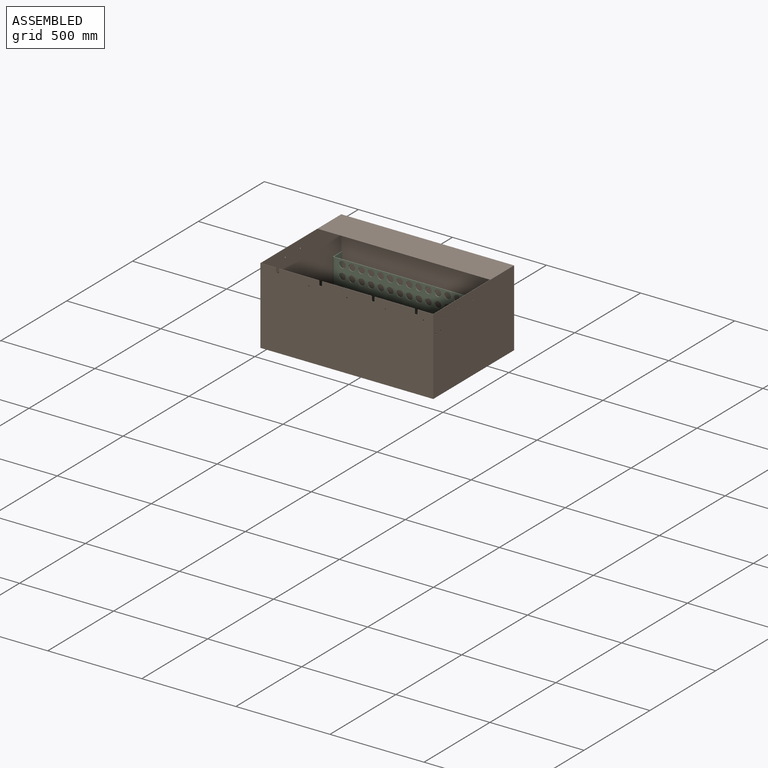
[diagram: assembled view]
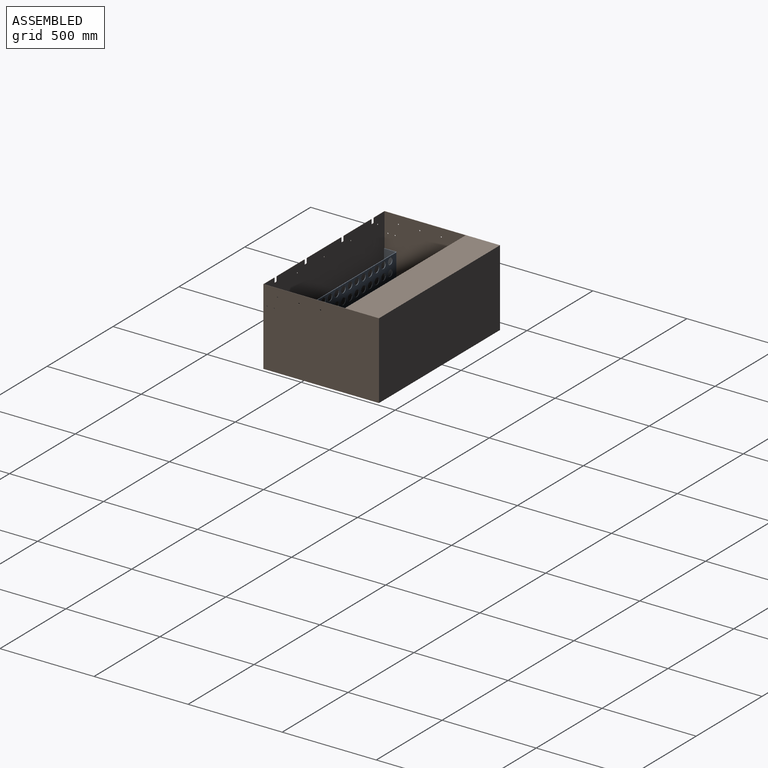
[diagram: assembled view, second angle]
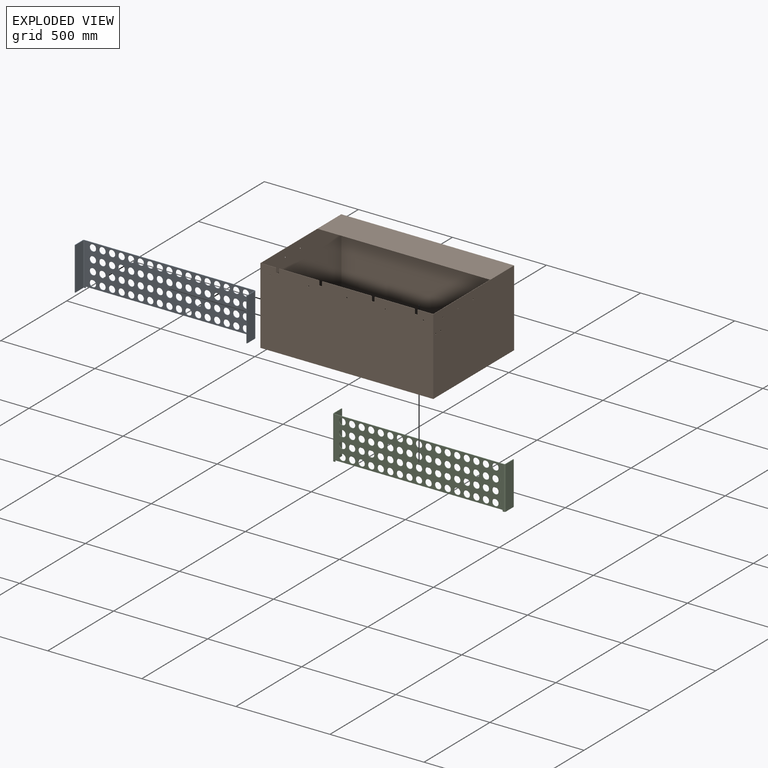
[diagram: exploded view]
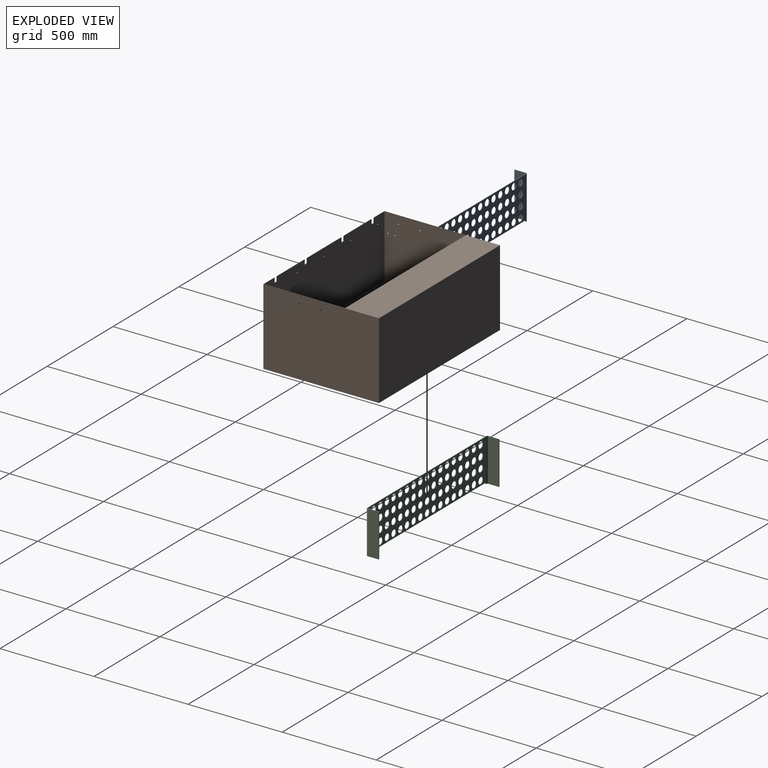
[diagram: exploded view, second angle]
ASSEMBLY  parts=3 mates=6
PART A: 94 faces, bbox 915.7x66.7x228.6 mm
  f0: plane 6.35x3.18mm, normal (0,0,-1), area 20.2mm2, adj f1,f2,f78,f91
  f1: plane 902.97x228.6mm, normal (0,1,0), area 134491.5mm2, adj f0,f3,f4,f5,f6,f7,f8,f9
  f2: plane 902.97x228.6mm, normal (0,-1,0), area 134491.5mm2, adj f0,f3,f4,f5,f6,f7,f8,f9
  f3: plane 6.35x3.18mm, normal (0,0,-1), area 20.2mm2, adj f1,f2,f87,f92
  f4: cylinder r=17.46mm len=34.93mm, axis (0,-1,0), area 348.4mm2, adj f1,f2
  f5: cylinder r=17.46mm len=34.93mm, axis (0,-1,0), area 348.4mm2, adj f1,f2
  f6: cylinder r=17.46mm len=34.93mm, axis (0,-1,0), area 348.4mm2, adj f1,f2
  f7: cylinder r=17.46mm len=34.93mm, axis (0,-1,0), area 348.4mm2, adj f1,f2
  f8: cylinder r=17.46mm len=34.93mm, axis (0,-1,0), area 348.4mm2, adj f1,f2
  f9: cylinder r=17.46mm len=34.93mm, axis (0,-1,0), area 348.4mm2, adj f1,f2
  f10: cylinder r=17.46mm len=34.93mm, axis (0,-1,0), area 348.4mm2, adj f1,f2
  f11: cylinder r=17.46mm len=34.93mm, axis (0,-1,0), area 348.4mm2, adj f1,f2
  f12: cylinder r=17.46mm len=34.93mm, axis (0,-1,0), area 348.4mm2, adj f1,f2
  f13: cylinder r=17.46mm len=34.93mm, axis (0,-1,0), area 348.4mm2, adj f1,f2
  f14: cylinder r=17.46mm len=34.93mm, axis (0,-1,0), area 348.4mm2, adj f1,f2
  f15: cylinder r=17.46mm len=34.93mm, axis (0,-1,0), area 348.4mm2, adj f1,f2
  f16: cylinder r=17.46mm len=34.93mm, axis (0,-1,0), area 348.4mm2, adj f1,f2
  f17: cylinder r=17.46mm len=34.93mm, axis (0,-1,0), area 348.4mm2, adj f1,f2
  f18: cylinder r=17.46mm len=34.93mm, axis (0,-1,0), area 348.4mm2, adj f1,f2
  f19: cylinder r=17.46mm len=34.93mm, axis (0,-1,0), area 348.4mm2, adj f1,f2
  f20: cylinder r=17.46mm len=34.93mm, axis (0,-1,0), area 348.4mm2, adj f1,f2
  f21: cylinder r=17.46mm len=34.93mm, axis (0,-1,0), area 348.4mm2, adj f1,f2
  f22: cylinder r=17.46mm len=34.93mm, axis (0,-1,0), area 348.4mm2, adj f1,f2
  f23: cylinder r=17.46mm len=34.93mm, axis (0,-1,0), area 348.4mm2, adj f1,f2
  f24: cylinder r=17.46mm len=34.93mm, axis (0,-1,0), area 348.4mm2, adj f1,f2
  f25: cylinder r=17.46mm len=34.93mm, axis (0,-1,0), area 348.4mm2, adj f1,f2
  f26: cylinder r=17.46mm len=34.93mm, axis (0,-1,0), area 348.4mm2, adj f1,f2
  f27: cylinder r=17.46mm len=34.93mm, axis (0,-1,0), area 348.4mm2, adj f1,f2
  f28: cylinder r=17.46mm len=34.93mm, axis (0,-1,0), area 348.4mm2, adj f1,f2
  f29: cylinder r=17.46mm len=34.93mm, axis (0,-1,0), area 348.4mm2, adj f1,f2
  f30: cylinder r=17.46mm len=34.93mm, axis (0,-1,0), area 348.4mm2, adj f1,f2
  f31: cylinder r=17.46mm len=34.93mm, axis (0,-1,0), area 348.4mm2, adj f1,f2
  f32: cylinder r=17.46mm len=34.93mm, axis (0,-1,0), area 348.4mm2, adj f1,f2
  f33: cylinder r=17.46mm len=34.93mm, axis (0,-1,0), area 348.4mm2, adj f1,f2
  f34: cylinder r=17.46mm len=34.93mm, axis (0,-1,0), area 348.4mm2, adj f1,f2
  f35: cylinder r=17.46mm len=34.93mm, axis (0,-1,0), area 348.4mm2, adj f1,f2
  f36: cylinder r=17.46mm len=34.93mm, axis (0,-1,0), area 348.4mm2, adj f1,f2
  f37: cylinder r=17.46mm len=34.93mm, axis (0,-1,0), area 348.4mm2, adj f1,f2
  f38: cylinder r=17.46mm len=34.93mm, axis (0,-1,0), area 348.4mm2, adj f1,f2
  f39: cylinder r=17.46mm len=34.93mm, axis (0,-1,0), area 348.4mm2, adj f1,f2
  f40: cylinder r=17.46mm len=34.93mm, axis (0,-1,0), area 348.4mm2, adj f1,f2
  f41: cylinder r=17.46mm len=34.93mm, axis (0,-1,0), area 348.4mm2, adj f1,f2
  f42: cylinder r=17.46mm len=34.93mm, axis (0,-1,0), area 348.4mm2, adj f1,f2
  f43: cylinder r=17.46mm len=34.93mm, axis (0,-1,0), area 348.4mm2, adj f1,f2
  f44: cylinder r=17.46mm len=34.93mm, axis (0,-1,0), area 348.4mm2, adj f1,f2
  f45: cylinder r=17.46mm len=34.93mm, axis (0,-1,0), area 348.4mm2, adj f1,f2
  f46: cylinder r=17.46mm len=34.93mm, axis (0,-1,0), area 348.4mm2, adj f1,f2
  f47: cylinder r=17.46mm len=34.93mm, axis (0,-1,0), area 348.4mm2, adj f1,f2
  f48: cylinder r=17.46mm len=34.93mm, axis (0,-1,0), area 348.4mm2, adj f1,f2
  f49: cylinder r=17.46mm len=34.93mm, axis (0,-1,0), area 348.4mm2, adj f1,f2
  f50: cylinder r=17.46mm len=34.93mm, axis (0,-1,0), area 348.4mm2, adj f1,f2
  f51: cylinder r=17.46mm len=34.93mm, axis (0,-1,0), area 348.4mm2, adj f1,f2
  f52: cylinder r=17.46mm len=34.93mm, axis (0,-1,0), area 348.4mm2, adj f1,f2
  f53: cylinder r=17.46mm len=34.93mm, axis (0,-1,0), area 348.4mm2, adj f1,f2
  f54: cylinder r=17.46mm len=34.93mm, axis (0,-1,0), area 348.4mm2, adj f1,f2
  f55: cylinder r=17.46mm len=34.93mm, axis (0,-1,0), area 348.4mm2, adj f1,f2
  f56: cylinder r=17.46mm len=34.93mm, axis (0,-1,0), area 348.4mm2, adj f1,f2
  f57: cylinder r=17.46mm len=34.93mm, axis (0,-1,0), area 348.4mm2, adj f1,f2
  f58: cylinder r=17.46mm len=34.93mm, axis (0,-1,0), area 348.4mm2, adj f1,f2
  f59: cylinder r=17.46mm len=34.93mm, axis (0,-1,0), area 348.4mm2, adj f1,f2
  f60: cylinder r=17.46mm len=34.93mm, axis (0,-1,0), area 348.4mm2, adj f1,f2
  f61: cylinder r=17.46mm len=34.93mm, axis (0,-1,0), area 348.4mm2, adj f1,f2
  f62: cylinder r=17.46mm len=34.93mm, axis (0,-1,0), area 348.4mm2, adj f1,f2
  f63: cylinder r=17.46mm len=34.93mm, axis (0,-1,0), area 348.4mm2, adj f1,f2
  f64: cylinder r=17.46mm len=34.93mm, axis (0,-1,0), area 348.4mm2, adj f1,f2
  f65: cylinder r=17.46mm len=34.93mm, axis (0,-1,0), area 348.4mm2, adj f1,f2
  f66: cylinder r=17.46mm len=34.93mm, axis (0,-1,0), area 348.4mm2, adj f1,f2
  f67: cylinder r=17.46mm len=34.93mm, axis (0,-1,0), area 348.4mm2, adj f1,f2
  f68: cylinder r=17.46mm len=34.93mm, axis (0,-1,0), area 348.4mm2, adj f1,f2
  f69: cylinder r=17.46mm len=34.93mm, axis (0,-1,0), area 348.4mm2, adj f1,f2
  f70: cylinder r=17.46mm len=34.93mm, axis (0,-1,0), area 348.4mm2, adj f1,f2
  f71: cylinder r=17.46mm len=34.93mm, axis (0,-1,0), area 348.4mm2, adj f1,f2
  f72: plane 902.97x3.18mm, normal (0,0,1), area 2866.9mm2, adj f1,f2,f79,f88
  f73: plane 60.33x3.18mm, normal (0,0,1), area 191.5mm2, adj f75,f76,f77,f79
  f74: plane 60.33x3.18mm, normal (0,0,-1), area 191.5mm2, adj f75,f76,f77,f78
  f75: plane 228.6x3.18mm, normal (0,1,0), area 725.8mm2, adj f73,f74,f76,f77
  f76: plane 228.6x60.33mm, normal (1,0,0), area 13790.3mm2, adj f73,f74,f75,f81
  f77: plane 228.6x60.33mm, normal (-1,0,0), area 13790.3mm2, adj f73,f74,f75,f80
  f78: plane 6.35x6.35mm, normal (0,0,-1), area 23.8mm2, adj f0,f74,f80,f81
  f79: plane 6.35x6.35mm, normal (0,0,1), area 23.8mm2, adj f72,f73,f80,f81
  f80: cylinder r=6.35mm len=228.6mm, axis (0,0,-1), area 2280.2mm2, adj f2,f77,f78,f79
  f81: cylinder r=3.17mm len=228.6mm, axis (0,0,-1), area 1140.1mm2, adj f1,f76,f78,f79
  f82: plane 60.33x3.18mm, normal (0,0,-1), area 191.5mm2, adj f84,f85,f86,f87
  f83: plane 60.33x3.18mm, normal (0,0,1), area 191.5mm2, adj f84,f85,f86,f88
  f84: plane 228.6x3.18mm, normal (0,1,0), area 725.8mm2, adj f82,f83,f85,f86
  f85: plane 228.6x60.33mm, normal (-1,0,0), area 13790.3mm2, adj f82,f83,f84,f90
  f86: plane 228.6x60.33mm, normal (1,0,0), area 13790.3mm2, adj f82,f83,f84,f89
  f87: plane 6.35x6.35mm, normal (0,0,-1), area 23.8mm2, adj f3,f82,f89,f90
  f88: plane 6.35x6.35mm, normal (0,0,1), area 23.8mm2, adj f72,f83,f89,f90
  f89: cylinder r=6.35mm len=228.6mm, axis (0,0,-1), area 2280.2mm2, adj f2,f86,f87,f88
  f90: cylinder r=3.17mm len=228.6mm, axis (0,0,-1), area 1140.1mm2, adj f1,f85,f87,f88
  f91: plane 7.62x3.18mm, normal (1,0,0), area 24.2mm2, adj f0,f1,f2,f93
  f92: plane 7.62x3.18mm, normal (-1,0,0), area 24.2mm2, adj f1,f2,f3,f93
  f93: plane 890.27x3.18mm, normal (0,0,-1), area 2826.6mm2, adj f1,f2,f91,f92
PART B: 60 faces, bbox 919x614.2x407.2 mm
  f0: plane 207.65x1.27mm, normal (0,0,1), area 263.7mm2, adj f4,f5,f52,f56
  f1: plane 258.45x1.27mm, normal (0,0,1), area 328.2mm2, adj f4,f5,f51,f53
  f2: plane 207.65x1.27mm, normal (0,0,1), area 263.7mm2, adj f4,f5,f46,f50
  f3: plane 918.97x614.17mm, normal (0,0,1), area 167962.2mm2, adj f4,f5,f7,f8,f9,f10,f11,f26
  f4: plane 918.97x407.16mm, normal (0,-1,0), area 372450.6mm2, adj f0,f1,f2,f3,f10,f11,f12,f15
  f5: plane 916.43x405.89mm, normal (0,1,0), area 370252.5mm2, adj f0,f1,f2,f3,f7,f8,f13,f15
  f6: plane 916.43x405.13mm, normal (0,-1,0), area 371274.1mm2, adj f7,f8,f13,f27
  f7: plane 611.63x405.89mm, normal (1,0,0), area 248012.3mm2, adj f3,f5,f6,f13,f21,f23,f25,f26
  f8: plane 611.63x405.89mm, normal (-1,0,0), area 248012.3mm2, adj f3,f5,f6,f13,f20,f22,f24,f26
  f9: plane 918.97x407.16mm, normal (0,1,0), area 374170.5mm2, adj f3,f10,f11,f12
  f10: plane 614.17x407.16mm, normal (-1,0,0), area 249960.5mm2, adj f3,f4,f9,f12,f21,f23,f25,f30
  f11: plane 614.17x407.16mm, normal (1,0,0), area 249960.5mm2, adj f3,f4,f9,f12,f20,f22,f24,f28
  f12: plane 918.97x614.17mm, normal (0,0,-1), area 562577.7mm2, adj f4,f9,f10,f11,f14
  f13: plane 916.43x611.63mm, normal (0,0,1), area 558689.9mm2, adj f5,f6,f7,f8,f14
  f14: cylinder r=24.13mm len=48.26mm, axis (0,0,1), area 192.5mm2, adj f12,f13
  f15: cylinder r=2.61mm len=5.22mm, axis (0,-1,0), area 20.8mm2, adj f4,f5
  f16: cylinder r=2.61mm len=5.22mm, axis (0,-1,0), area 20.8mm2, adj f4,f5
  f17: cylinder r=2.61mm len=5.22mm, axis (0,-1,0), area 20.8mm2, adj f4,f5
  f18: cylinder r=2.61mm len=5.22mm, axis (0,-1,0), area 20.8mm2, adj f4,f5
  f19: cylinder r=2.61mm len=5.22mm, axis (0,-1,0), area 20.8mm2, adj f4,f5
  f20: cylinder r=2.61mm len=5.22mm, axis (-1,0,0), area 20.8mm2, adj f8,f11
  f21: cylinder r=2.61mm len=5.22mm, axis (-1,0,0), area 20.8mm2, adj f7,f10
  f22: cylinder r=2.61mm len=5.22mm, axis (-1,0,0), area 20.8mm2, adj f8,f11
  f23: cylinder r=2.61mm len=5.22mm, axis (-1,0,0), area 20.8mm2, adj f7,f10
  f24: cylinder r=2.61mm len=5.22mm, axis (-1,0,0), area 20.8mm2, adj f8,f11
  f25: cylinder r=2.61mm len=5.22mm, axis (-1,0,0), area 20.8mm2, adj f7,f10
  f26: plane 916.43x0.76mm, normal (0,-1,0), area 698.3mm2, adj f3,f7,f8,f27
  f27: plane 916.43x180.09mm, normal (0,0,-1), area 165036.6mm2, adj f6,f7,f8,f26
  f28: cylinder r=2.61mm len=5.22mm, axis (1,0,0), area 20.8mm2, adj f8,f11
  f29: cylinder r=2.61mm len=5.22mm, axis (1,0,0), area 20.8mm2, adj f8,f11
  f30: cylinder r=2.61mm len=5.22mm, axis (1,0,0), area 20.8mm2, adj f7,f10
  f31: cylinder r=2.61mm len=5.22mm, axis (1,0,0), area 20.8mm2, adj f7,f10
  f32: plane 20.32x1.27mm, normal (1,0,0), area 25.8mm2, adj f4,f5,f45,f46
  f33: plane 10.8x1.27mm, normal (0,0,1), area 13.7mm2, adj f4,f5,f44,f45
  f34: plane 20.32x1.27mm, normal (-1,0,0), area 25.8mm2, adj f4,f5,f44,f47
  f35: plane 20.32x1.27mm, normal (1,0,0), area 25.8mm2, adj f4,f5,f49,f51
  f36: plane 10.8x1.27mm, normal (0,0,1), area 13.7mm2, adj f4,f5,f48,f49
  f37: plane 20.32x1.27mm, normal (-1,0,0), area 25.8mm2, adj f4,f5,f48,f50
  f38: plane 20.32x1.27mm, normal (1,0,0), area 25.8mm2, adj f4,f5,f52,f54
  f39: plane 10.8x1.27mm, normal (0,0,1), area 13.7mm2, adj f4,f5,f54,f55
  f40: plane 20.32x1.27mm, normal (-1,0,0), area 25.8mm2, adj f4,f5,f53,f55
  f41: plane 20.32x1.27mm, normal (1,0,0), area 25.8mm2, adj f4,f5,f57,f59
  f42: plane 10.8x1.27mm, normal (0,0,1), area 13.7mm2, adj f4,f5,f58,f59
  f43: plane 20.32x1.27mm, normal (-1,0,0), area 25.8mm2, adj f4,f5,f56,f58
  f44: cylinder r=2.54mm len=2.54mm, axis (0,-1,0), area 5.1mm2, adj f4,f5,f33,f34
  f45: cylinder r=2.54mm len=2.54mm, axis (0,1,0), area 5.1mm2, adj f4,f5,f32,f33
  f46: cylinder r=2.54mm len=2.54mm, axis (0,1,0), area 5.1mm2, adj f2,f4,f5,f32
  f47: cylinder r=2.54mm len=2.54mm, axis (0,-1,0), area 5.1mm2, adj f3,f4,f5,f34
  f48: cylinder r=2.54mm len=2.54mm, axis (0,-1,0), area 5.1mm2, adj f4,f5,f36,f37
  f49: cylinder r=2.54mm len=2.54mm, axis (0,1,0), area 5.1mm2, adj f4,f5,f35,f36
  f50: cylinder r=2.54mm len=2.54mm, axis (0,-1,0), area 5.1mm2, adj f2,f4,f5,f37
  f51: cylinder r=2.54mm len=2.54mm, axis (0,1,0), area 5.1mm2, adj f1,f4,f5,f35
  f52: cylinder r=2.54mm len=2.54mm, axis (0,1,0), area 5.1mm2, adj f0,f4,f5,f38
  f53: cylinder r=2.54mm len=2.54mm, axis (0,-1,0), area 5.1mm2, adj f1,f4,f5,f40
  f54: cylinder r=2.54mm len=2.54mm, axis (0,1,0), area 5.1mm2, adj f4,f5,f38,f39
  f55: cylinder r=2.54mm len=2.54mm, axis (0,-1,0), area 5.1mm2, adj f4,f5,f39,f40
  f56: cylinder r=2.54mm len=2.54mm, axis (0,-1,0), area 5.1mm2, adj f0,f4,f5,f43
  f57: cylinder r=2.54mm len=2.54mm, axis (0,1,0), area 5.1mm2, adj f3,f4,f5,f41
  f58: cylinder r=2.54mm len=2.54mm, axis (0,-1,0), area 5.1mm2, adj f4,f5,f42,f43
  f59: cylinder r=2.54mm len=2.54mm, axis (0,1,0), area 5.1mm2, adj f4,f5,f41,f42
PART C: same geometry as A
PLACE A rot(axis=(0,0,1),180deg) t=(-124.37,-200.94,82.09)mm
PLACE B t=(-124.75,41.38,-33.48)mm fixed
PLACE C t=(-124.37,283.69,82.09)mm
MATE planar C.f86 <-> B.f8  axis (1,0,0) through (333.47,286.87,82.09)mm
MATE planar C.f84 <-> B.f6  axis (0,1,0) through (331.88,347.19,82.09)mm
MATE planar A.f77 <-> B.f8  axis (1,0,0) through (333.47,-234.28,82.09)mm
MATE planar C.f0 <-> B.f13  axis (0,0,-1) through (-572.68,282.11,-32.21)mm
MATE planar A.f74 <-> B.f13  axis (0,0,-1) through (331.88,-234.28,-32.21)mm
MATE planar A.f84 <-> B.f5  axis (0,-1,0) through (-580.62,-264.44,82.09)mm
